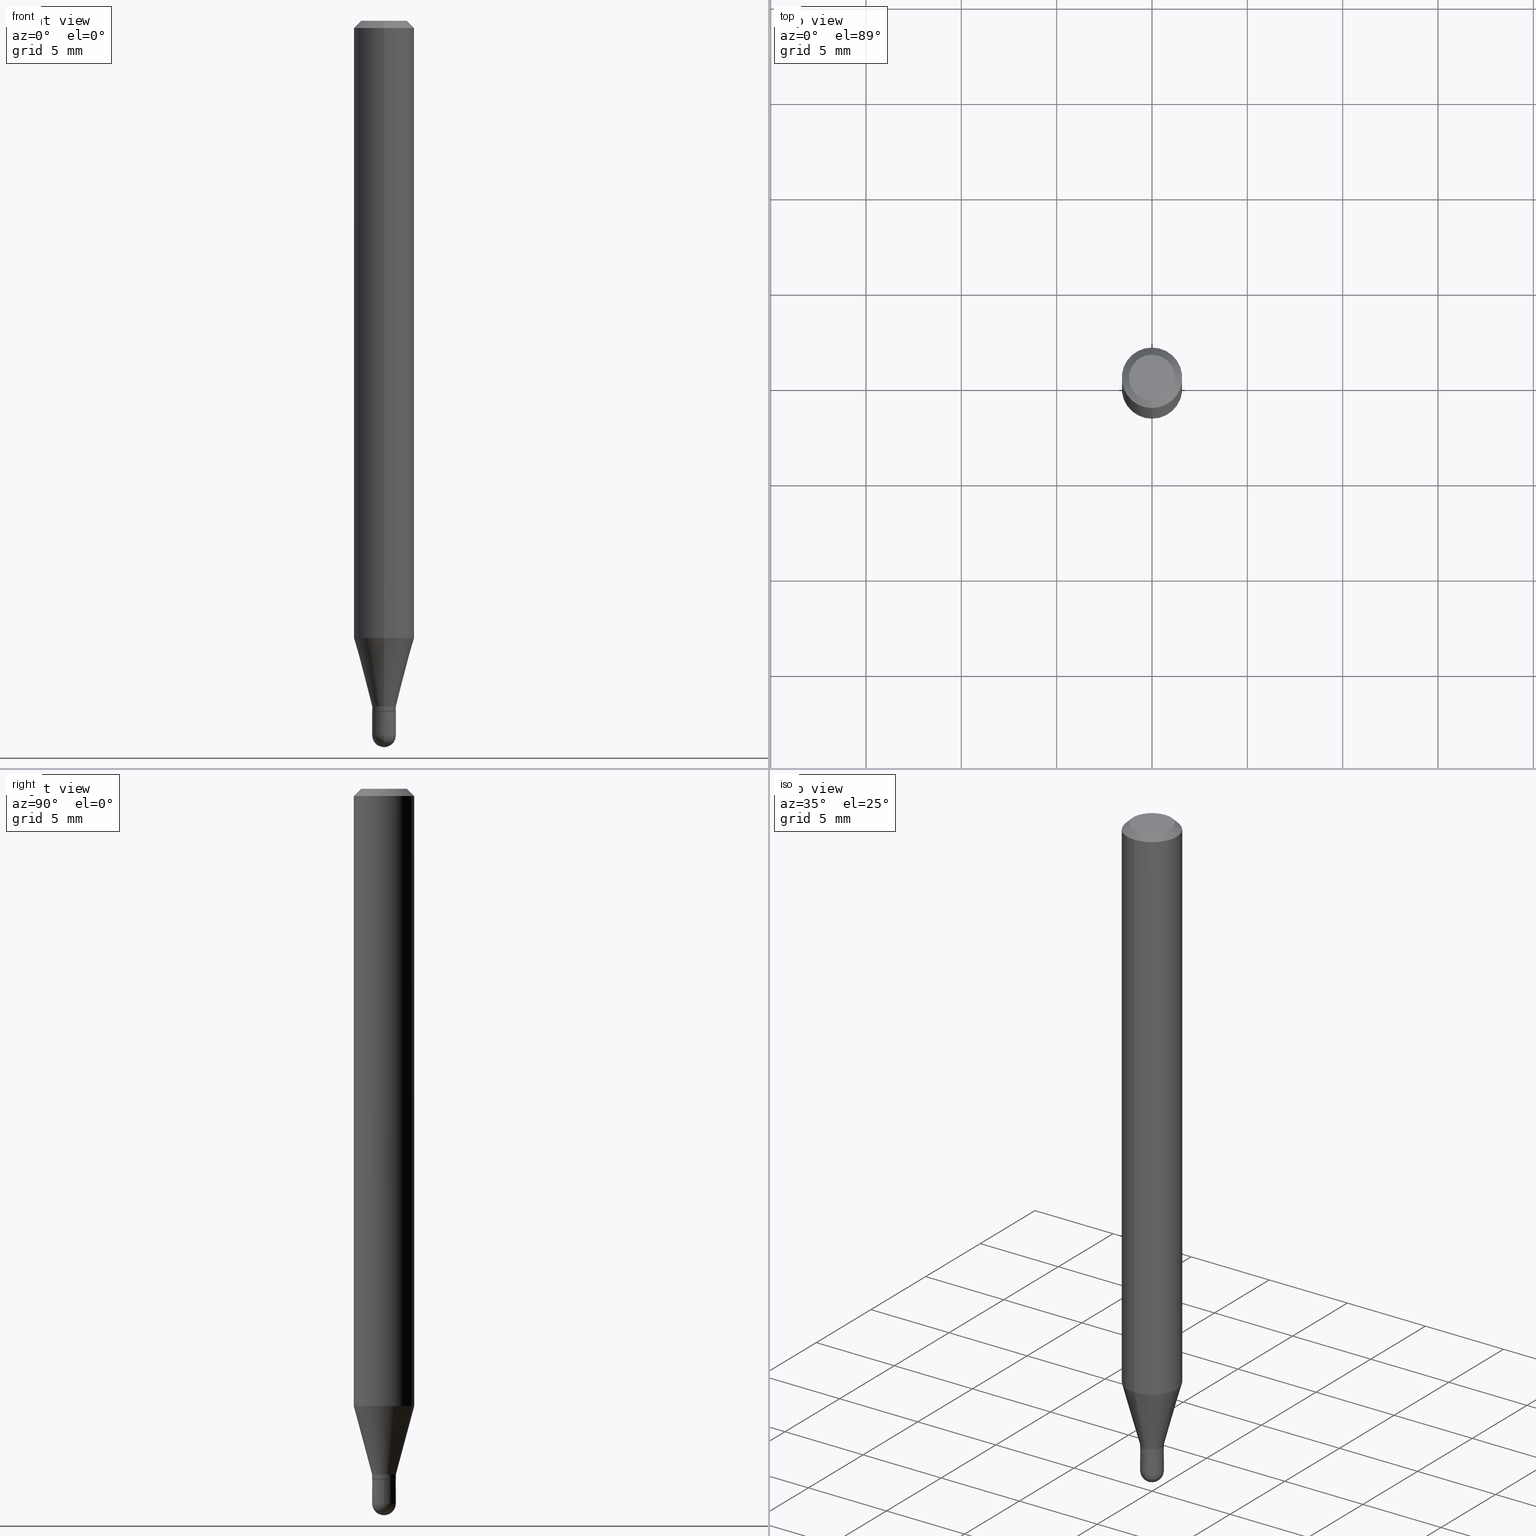
[diagram: canonical four-view strip — front | top / right | iso, engineering-drawing reading convention]
A machine part, canonical four-view strip (front | top / right | iso — engineering-drawing reading convention). The complete STEP part file that produces these views, byte-faithful:
ISO-10303-21;
HEADER;
FILE_DESCRIPTION (( 'STEP AP203' ),
    '1' );
FILE_NAME ('02512.STEP',
    '2024-03-07T20:10:44',
    ( '' ),
    ( '' ),
    'SwSTEP 2.0',
    'SolidWorks 2023',
    '' );
FILE_SCHEMA (( 'CONFIG_CONTROL_DESIGN' ));
ENDSEC;

DATA;
#1 = DIRECTION ( 'NONE',  ( -2.445462433583878327E-29, 3.491490464770853436E-15, 1.000000000000000000 ) ) ;
#2 = AXIS2_PLACEMENT_3D ( 'NONE', #282, #93, #480 ) ;
#3 = DIRECTION ( 'NONE',  ( -2.445468806185136877E-29, 3.491481338843145188E-15, 1.000000000000000000 ) ) ;
#4 = LOCAL_TIME ( 15, 10, 44.00000000000000000, #463 ) ;
#5 = DIRECTION ( 'NONE',  ( -2.445468806185136597E-29, 3.491481338843145583E-15, 1.000000000000000000 ) ) ;
#6 = EDGE_CURVE ( 'NONE', #367, #392, #416, .T. ) ;
#7 = DIRECTION ( 'NONE',  ( -2.445462433583878327E-29, 3.491490464770853436E-15, 1.000000000000000000 ) ) ;
#8 = DIRECTION ( 'NONE',  ( 1.000000000000000000, 0.000000000000000000, 0.000000000000000000 ) ) ;
#9 = FACE_OUTER_BOUND ( 'NONE', #10, .T. ) ;
#10 = EDGE_LOOP ( 'NONE', ( #122, #111 ) ) ;
#11 = DIRECTION ( 'NONE',  ( -6.982962677686265133E-15, -1.000000000000000000, 0.000000000000000000 ) ) ;
#12 = EDGE_CURVE ( 'NONE', #387, #55, #485, .T. ) ;
#13 = AXIS2_PLACEMENT_3D ( 'NONE', #448, #92, #317 ) ;
#14 = CIRCLE ( 'NONE', #88, 0.02449999999999992462 ) ;
#15 = LINE ( 'NONE', #368, #281 ) ;
#16 = CALENDAR_DATE ( 2024, 7, 3 ) ;
#17 = ORIENTED_EDGE ( 'NONE', *, *, #192, .T. ) ;
#18 = ORIENTED_EDGE ( 'NONE', *, *, #141, .F. ) ;
#19 = DIRECTION ( 'NONE',  ( -2.445468806185136877E-29, 3.491481338843145188E-15, 1.000000000000000000 ) ) ;
#20 = PERSON_AND_ORGANIZATION ( #395, #77 ) ;
#21 = ORIENTED_EDGE ( 'NONE', *, *, #436, .T. ) ;
#22 = ADVANCED_FACE ( 'NONE', ( #206 ), #279, .T. ) ;
#23 = ORIENTED_EDGE ( 'NONE', *, *, #440, .F. ) ;
#24 = AXIS2_PLACEMENT_3D ( 'NONE', #155, #504, #306 ) ;
#25 = COORDINATED_UNIVERSAL_TIME_OFFSET ( 5, 0, .BEHIND. ) ;
#26 = PERSON_AND_ORGANIZATION ( #395, #77 ) ;
#27 = DIRECTION ( 'NONE',  ( -6.982962677686265133E-15, -1.000000000000000000, 3.491490464770853436E-15 ) ) ;
#28 = ORIENTED_EDGE ( 'NONE', *, *, #90, .T. ) ;
#29 = PERSON_AND_ORGANIZATION_ROLE ( 'creator' ) ;
#30 = CIRCLE ( 'NONE', #171, 0.02450000000000000441 ) ;
#31 = PRODUCT_DEFINITION_FORMATION_WITH_SPECIFIED_SOURCE ( 'ANY', '', #290, .NOT_KNOWN. ) ;
#32 = ORIENTED_EDGE ( 'NONE', *, *, #128, .F. ) ;
#33 = ORIENTED_EDGE ( 'NONE', *, *, #471, .T. ) ;
#34 = EDGE_LOOP ( 'NONE', ( #156, #61, #497, #314, #32 ) ) ;
#35 = CC_DESIGN_PERSON_AND_ORGANIZATION_ASSIGNMENT ( #26, #29, ( #338 ) ) ;
#36 = ORIENTED_EDGE ( 'NONE', *, *, #303, .F. ) ;
#37 = VECTOR ( 'NONE', #388, 39.37007874015748143 ) ;
#38 = CC_DESIGN_APPROVAL ( #498, ( #31 ) ) ;
#39 = AXIS2_PLACEMENT_3D ( 'NONE', #468, #276, #434 ) ;
#40 = CARTESIAN_POINT ( 'NONE',  ( 3.668193650375898153E-31, -5.237235697156394761E-17, -0.01500000000000032904 ) ) ;
#41 = DIRECTION ( 'NONE',  ( -6.982962677686265922E-15, -1.000000000000000000, 0.000000000000000000 ) ) ;
#42 = CARTESIAN_POINT ( 'NONE',  ( -1.710825856032787042E-16, -0.02450000000000498307, -1.425500000000000211 ) ) ;
#43 = PRODUCT_RELATED_PRODUCT_CATEGORY ( 'detail', '', ( #290 ) ) ;
#44 = CARTESIAN_POINT ( 'NONE',  ( 3.090860900556762480E-16, 0.02449999999999498065, -1.416000000000000369 ) ) ;
#45 = AXIS2_PLACEMENT_3D ( 'NONE', #70, #430, #194 ) ;
#46 = CIRCLE ( 'NONE', #415, 0.04749999999999999362 ) ;
#47 = CARTESIAN_POINT ( 'NONE',  ( -1.710825856033129704E-16, -0.02449999999999992462, 8.554151638688565014E-17 ) ) ;
#48 = APPROVAL_ROLE ( '' ) ;
#49 = DIRECTION ( 'NONE',  ( -2.445462433583878327E-29, 3.491490464770853436E-15, 1.000000000000000000 ) ) ;
#50 =( NAMED_UNIT ( * ) SI_UNIT ( $, .STERADIAN. ) SOLID_ANGLE_UNIT ( ) );
#51 = EDGE_CURVE ( 'NONE', #346, #55, #76, .T. ) ;
#52 = DIRECTION ( 'NONE',  ( 1.000000000000000000, -6.982962677686272233E-15, 0.000000000000000000 ) ) ;
#53 = CONICAL_SURFACE ( 'NONE', #483, 0.06250000000000000000, 0.7853981633974483900 ) ;
#54 = LOCAL_TIME ( 15, 10, 44.00000000000000000, #147 ) ;
#55 = VERTEX_POINT ( 'NONE', #321 ) ;
#56 = VERTEX_POINT ( 'NONE', #439 ) ;
#57 = LINE ( 'NONE', #89, #428 ) ;
#58 = DIRECTION ( 'NONE',  ( -2.445462433583878327E-29, 3.491490464770853436E-15, 1.000000000000000000 ) ) ;
#59 = ORIENTED_EDGE ( 'NONE', *, *, #6, .T. ) ;
#60 = DIRECTION ( 'NONE',  ( -2.445462433583878327E-29, 3.491490464770853436E-15, 1.000000000000000000 ) ) ;
#61 = ORIENTED_EDGE ( 'NONE', *, *, #12, .T. ) ;
#62 = SECURITY_CLASSIFICATION_LEVEL ( 'unclassified' ) ;
#63 = DIRECTION ( 'NONE',  ( -4.851104656540964275E-15, -0.7071067811865500152, -0.7071067811865450192 ) ) ;
#64 = EDGE_CURVE ( 'NONE', #55, #311, #30, .T. ) ;
#65 = AXIS2_PLACEMENT_3D ( 'NONE', #437, #359, #41 ) ;
#66 = APPROVAL_DATE_TIME ( #417, #318 ) ;
#67 = ADVANCED_FACE ( 'NONE', ( #248 ), #354, .T. ) ;
#68 = CARTESIAN_POINT ( 'NONE',  ( 1.705302565824588813E-16, 0.02399999999999502184, -1.425999999999999934 ) ) ;
#69 = ORIENTED_EDGE ( 'NONE', *, *, #236, .T. ) ;
#70 = CARTESIAN_POINT ( 'NONE',  ( 3.115964384049603462E-29, -4.448794545386181558E-15, -1.274182069312383536 ) ) ;
#71 = EDGE_LOOP ( 'NONE', ( #350, #21, #227, #36 ) ) ;
#72 = COORDINATED_UNIVERSAL_TIME_OFFSET ( 5, 0, .BEHIND. ) ;
#73 = CARTESIAN_POINT ( 'NONE',  ( 3.486006699073818734E-29, -4.977119657530851924E-15, -1.425500000000000211 ) ) ;
#74 = ORIENTED_EDGE ( 'NONE', *, *, #191, .F. ) ;
#75 = SHAPE_DEFINITION_REPRESENTATION ( #189, #261 ) ;
#76 = CIRCLE ( 'NONE', #65, 0.02450000000000012584 ) ;
#77 = ORGANIZATION ( 'UNSPECIFIED', 'UNSPECIFIED', '' ) ;
#78 = ORIENTED_EDGE ( 'NONE', *, *, #236, .F. ) ;
#79 = CARTESIAN_POINT ( 'NONE',  ( -1.710825856032783344E-16, -0.02450000000000486858, -1.416000000000000369 ) ) ;
#80 = ORIENTED_EDGE ( 'NONE', *, *, #90, .F. ) ;
#81 = ORIENTED_EDGE ( 'NONE', *, *, #299, .T. ) ;
#82 = VERTEX_POINT ( 'NONE', #287 ) ;
#83 = ADVANCED_FACE ( 'NONE', ( #9 ), #352, .F. ) ;
#84 = CARTESIAN_POINT ( 'NONE',  ( -1.675911042644354999E-16, -0.02400000000000497569, -1.425999999999999934 ) ) ;
#85 = SPHERICAL_SURFACE ( 'NONE', #24, 0.02450000000000012584 ) ;
#86 = AXIS2_PLACEMENT_3D ( 'NONE', #400, #49, #11 ) ;
#87 = DIRECTION ( 'NONE',  ( 1.000000000000000000, -6.982962677686267499E-15, 4.876176775795936353E-29 ) ) ;
#88 = AXIS2_PLACEMENT_3D ( 'NONE', #73, #120, #410 ) ;
#89 = CARTESIAN_POINT ( 'NONE',  ( 0.02450000000000000441, -1.710825856033135867E-16, 1.194663310070004571E-30 ) ) ;
#90 = EDGE_CURVE ( 'NONE', #340, #382, #441, .T. ) ;
#91 = DIRECTION ( 'NONE',  ( -2.445462433583878327E-29, 3.491490464770853436E-15, 1.000000000000000000 ) ) ;
#92 = DIRECTION ( 'NONE',  ( -2.445462433583878327E-29, 3.491490464770853436E-15, 1.000000000000000000 ) ) ;
#93 = DIRECTION ( 'NONE',  ( -2.445462433583878327E-29, 3.491490464770853436E-15, 1.000000000000000000 ) ) ;
#94 = FACE_OUTER_BOUND ( 'NONE', #148, .T. ) ;
#95 = CARTESIAN_POINT ( 'NONE',  ( 3.668193650375898153E-31, -5.237235697156394761E-17, -0.01500000000000032904 ) ) ;
#96 = CIRCLE ( 'NONE', #495, 0.02400000000000000050 ) ;
#97 = DIRECTION ( 'NONE',  ( -2.445462433583877767E-29, 3.491490464770853831E-15, 1.000000000000000000 ) ) ;
#98 = DIRECTION ( 'NONE',  ( 0.000000000000000000, 0.000000000000000000, 1.000000000000000000 ) ) ;
#99 = EDGE_CURVE ( 'NONE', #56, #82, #341, .T. ) ;
#100 = ORIENTED_EDGE ( 'NONE', *, *, #242, .T. ) ;
#101 = ADVANCED_FACE ( 'NONE', ( #316 ), #53, .T. ) ;
#102 = DIRECTION ( 'NONE',  ( 1.000000000000000000, -7.105427357601001070E-15, 4.926315508542082329E-29 ) ) ;
#103 = CARTESIAN_POINT ( 'NONE',  ( 1.740829702612610371E-16, 0.02449999999999490780, -1.475500000000000256 ) ) ;
#104 = AXIS2_PLACEMENT_3D ( 'NONE', #204, #257, #295 ) ;
#105 = AXIS2_PLACEMENT_3D ( 'NONE', #331, #487, #294 ) ;
#106 = CIRCLE ( 'NONE', #389, 0.02450000000000000441 ) ;
#107 = CARTESIAN_POINT ( 'NONE',  ( 4.364351673553919652E-16, 0.06249999999999995143, -0.01500000000000054588 ) ) ;
#108 = ORIENTED_EDGE ( 'NONE', *, *, #312, .F. ) ;
#109 = DATE_AND_TIME ( #453, #334 ) ;
#110 = DIRECTION ( 'NONE',  ( 1.000000000000000000, -6.982962677686266711E-15, 4.883557194083112901E-29 ) ) ;
#111 = ORIENTED_EDGE ( 'NONE', *, *, #99, .F. ) ;
#112 = CALENDAR_DATE ( 2024, 7, 3 ) ;
#113 = EDGE_LOOP ( 'NONE', ( #464, #33 ) ) ;
#114 = AXIS2_PLACEMENT_3D ( 'NONE', #40, #462, #351 ) ;
#115 = CC_DESIGN_APPROVAL ( #318, ( #328 ) ) ;
#116 = CARTESIAN_POINT ( 'NONE',  ( 3.487229430290611061E-29, -4.978865402763238174E-15, -1.425999999999999934 ) ) ;
#117 = ORIENTED_EDGE ( 'NONE', *, *, #332, .T. ) ;
#118 = FACE_OUTER_BOUND ( 'NONE', #466, .T. ) ;
#119 = APPROVAL_STATUS ( 'not_yet_approved' ) ;
#120 = DIRECTION ( 'NONE',  ( -2.445462433583878327E-29, 3.491490464770853436E-15, 1.000000000000000000 ) ) ;
#121 = ORIENTED_EDGE ( 'NONE', *, *, #335, .F. ) ;
#122 = ORIENTED_EDGE ( 'NONE', *, *, #150, .F. ) ;
#123 = CALENDAR_DATE ( 2024, 7, 3 ) ;
#124 = EDGE_LOOP ( 'NONE', ( #447, #28, #74, #379 ) ) ;
#125 = FACE_OUTER_BOUND ( 'NONE', #113, .T. ) ;
#126 = CIRCLE ( 'NONE', #104, 0.02450000000000000094 ) ;
#127 = EDGE_LOOP ( 'NONE', ( #130, #307, #509, #360 ) ) ;
#128 = EDGE_CURVE ( 'NONE', #433, #374, #230, .T. ) ;
#129 = CARTESIAN_POINT ( 'NONE',  ( 0.02450000000000000441, -5.236349137930007031E-15, -1.475500000000000256 ) ) ;
#130 = ORIENTED_EDGE ( 'NONE', *, *, #471, .F. ) ;
#131 = DIRECTION ( 'NONE',  ( 1.839019923739602682E-15, 0.2588190451025252914, 0.9659258262890670910 ) ) ;
#132 = CYLINDRICAL_SURFACE ( 'NONE', #201, 0.02450000000000000441 ) ;
#133 = EDGE_LOOP ( 'NONE', ( #455, #145, #260, #18 ) ) ;
#134 = AXIS2_PLACEMENT_3D ( 'NONE', #207, #355, #52 ) ;
#135 = CARTESIAN_POINT ( 'NONE',  ( 1.740829702612239852E-16, 0.02449999999999992462, -8.554151638688565014E-17 ) ) ;
#136 = CARTESIAN_POINT ( 'NONE',  ( 3.668193650375898153E-31, -5.237235697156394761E-17, -0.01500000000000032904 ) ) ;
#137 = DIMENSIONAL_EXPONENTS ( 1.000000000000000000, 0.000000000000000000, 0.000000000000000000, 0.000000000000000000, 0.000000000000000000, 0.000000000000000000, 0.000000000000000000 ) ;
#138 = CARTESIAN_POINT ( 'NONE',  ( 1.740829702612582514E-16, 0.02449999999999486616, -1.425500000000000211 ) ) ;
#139 = DIRECTION ( 'NONE',  ( 1.000000000000000000, -6.982962677686273810E-15, 0.000000000000000000 ) ) ;
#140 = DIRECTION ( 'NONE',  ( -6.982962677686265922E-15, -1.000000000000000000, 3.491490464770853831E-15 ) ) ;
#141 = EDGE_CURVE ( 'NONE', #340, #167, #414, .T. ) ;
#142 = AXIS2_PLACEMENT_3D ( 'NONE', #209, #1, #211 ) ;
#143 = AXIS2_PLACEMENT_3D ( 'NONE', #185, #378, #27 ) ;
#144 =( CONVERSION_BASED_UNIT ( 'INCH', #174 ) LENGTH_UNIT ( ) NAMED_UNIT ( #137 ) );
#145 = ORIENTED_EDGE ( 'NONE', *, *, #99, .T. ) ;
#146 = DIRECTION ( 'NONE',  ( -1.000000000000000000, 6.982962677686265922E-15, -4.876176775795935793E-29 ) ) ;
#147 = COORDINATED_UNIVERSAL_TIME_OFFSET ( 5, 0, .BEHIND. ) ;
#148 = EDGE_LOOP ( 'NONE', ( #17, #486 ) ) ;
#149 = CARTESIAN_POINT ( 'NONE',  ( 3.606194066117680480E-29, -5.154681100120972780E-15, -1.475500000000000256 ) ) ;
#150 = EDGE_CURVE ( 'NONE', #82, #56, #96, .T. ) ;
#151 = AXIS2_PLACEMENT_3D ( 'NONE', #470, #473, #139 ) ;
#152 = AXIS2_PLACEMENT_3D ( 'NONE', #116, #264, #225 ) ;
#153 = DIRECTION ( 'NONE',  ( 5.024295867788190974E-15, 0.7071067811865681119, 0.7071067811865270336 ) ) ;
#154 = EDGE_LOOP ( 'NONE', ( #461, #452, #81, #296 ) ) ;
#155 = CARTESIAN_POINT ( 'NONE',  ( 3.606194066117680480E-29, -5.154681100120972780E-15, -1.475500000000000256 ) ) ;
#156 = ORIENTED_EDGE ( 'NONE', *, *, #401, .F. ) ;
#157 = PERSON_AND_ORGANIZATION_ROLE ( 'design_supplier' ) ;
#158 = ORIENTED_EDGE ( 'NONE', *, *, #182, .T. ) ;
#159 = EDGE_CURVE ( 'NONE', #420, #265, #293, .T. ) ;
#160 = DIRECTION ( 'NONE',  ( -2.445462433583878327E-29, 3.491490464770853436E-15, 1.000000000000000000 ) ) ;
#161 = DIRECTION ( 'NONE',  ( -1.807323732225332900E-15, -0.2588190451025185190, 0.9659258262890689783 ) ) ;
#162 = EDGE_CURVE ( 'NONE', #167, #232, #362, .T. ) ;
#163 = CIRCLE ( 'NONE', #86, 0.02449999999999992462 ) ;
#164 = AXIS2_PLACEMENT_3D ( 'NONE', #258, #60, #218 ) ;
#165 = CLOSED_SHELL ( 'NONE', ( #353, #176, #399, #228, #245, #427, #67, #101, #277, #83, #446, #454 ) ) ;
#166 = CARTESIAN_POINT ( 'NONE',  ( 4.440892098500625669E-16, 0.06250000000000000000, -2.182181540481783151E-16 ) ) ;
#167 = VERTEX_POINT ( 'NONE', #42 ) ;
#168 = DIRECTION ( 'NONE',  ( -6.982962677686265133E-15, -1.000000000000000000, 0.000000000000000000 ) ) ;
#169 = DIRECTION ( 'NONE',  ( -2.445462433583878047E-29, 3.491490464770853831E-15, 1.000000000000000000 ) ) ;
#170 = CARTESIAN_POINT ( 'NONE',  ( 3.665060473164972086E-29, -5.241722585251585722E-15, -1.500000000000000444 ) ) ;
#171 = AXIS2_PLACEMENT_3D ( 'NONE', #172, #237, #390 ) ;
#172 = CARTESIAN_POINT ( 'NONE',  ( 3.608289223526169394E-29, -5.151680715463062135E-15, -1.475500000000000256 ) ) ;
#173 = CARTESIAN_POINT ( 'NONE',  ( -0.02450000000000000441, -4.891183582065470642E-15, -1.475500000000000256 ) ) ;
#174 = LENGTH_MEASURE_WITH_UNIT ( LENGTH_MEASURE( 0.02539999999999999897 ), #283 );
#175 = PERSON_AND_ORGANIZATION ( #395, #77 ) ;
#176 = ADVANCED_FACE ( 'NONE', ( #323 ), #200, .T. ) ;
#177 = CARTESIAN_POINT ( 'NONE',  ( 3.608289223526169394E-29, -5.151680715463062135E-15, -1.475500000000000256 ) ) ;
#178 = EDGE_LOOP ( 'NONE', ( #80, #426, #493, #121 ) ) ;
#179 = DIRECTION ( 'NONE',  ( -2.445462433583878047E-29, 3.491490464770853831E-15, 1.000000000000000000 ) ) ;
#180 = AXIS2_PLACEMENT_3D ( 'NONE', #278, #234, #168 ) ;
#181 = EDGE_LOOP ( 'NONE', ( #23, #347, #373, #199 ) ) ;
#182 = EDGE_CURVE ( 'NONE', #311, #422, #106, .T. ) ;
#183 = CARTESIAN_POINT ( 'NONE',  ( -4.364351673553912750E-16, -0.06250000000000005551, -0.01500000000000011047 ) ) ;
#184 = APPROVAL_ROLE ( '' ) ;
#185 = CARTESIAN_POINT ( 'NONE',  ( 0.000000000000000000, 0.000000000000000000, 0.000000000000000000 ) ) ;
#186 = AXIS2_PLACEMENT_3D ( 'NONE', #244, #445, #87 ) ;
#187 = APPROVAL_PERSON_ORGANIZATION ( #190, #498, #224 ) ;
#188 = ORIENTED_EDGE ( 'NONE', *, *, #213, .F. ) ;
#189 = PRODUCT_DEFINITION_SHAPE ( 'NONE', 'NONE',  #338 ) ;
#190 = PERSON_AND_ORGANIZATION ( #395, #77 ) ;
#191 = EDGE_CURVE ( 'NONE', #232, #382, #163, .T. ) ;
#192 = EDGE_CURVE ( 'NONE', #374, #433, #126, .T. ) ;
#193 = DIRECTION ( 'NONE',  ( -2.445462433583878327E-29, 3.491490464770853436E-15, 1.000000000000000000 ) ) ;
#194 = DIRECTION ( 'NONE',  ( -6.982962677686265922E-15, -1.000000000000000000, 4.370956789862821150E-15 ) ) ;
#195 = CONICAL_SURFACE ( 'NONE', #474, 0.06250000000000000000, 0.7853981633974483900 ) ;
#196 = CARTESIAN_POINT ( 'NONE',  ( 8.024699732624142667E-45, -1.145720425483910570E-30, -3.281465142305935918E-16 ) ) ;
#197 = APPROVAL ( #398, 'UNSPECIFIED' ) ;
#198 = DIRECTION ( 'NONE',  ( -6.982962677686265133E-15, -1.000000000000000000, 0.000000000000000000 ) ) ;
#199 = ORIENTED_EDGE ( 'NONE', *, *, #280, .T. ) ;
#200 = CONICAL_SURFACE ( 'NONE', #467, 0.02400000000000000050, 0.7853981633974739252 ) ;
#201 = AXIS2_PLACEMENT_3D ( 'NONE', #366, #5, #329 ) ;
#202 = ORIENTED_EDGE ( 'NONE', *, *, #386, .T. ) ;
#203 = AXIS2_PLACEMENT_3D ( 'NONE', #503, #160, #505 ) ;
#204 = CARTESIAN_POINT ( 'NONE',  ( 3.487238517620005029E-29, -4.978852389190326182E-15, -1.425999999999999934 ) ) ;
#205 = DIRECTION ( 'NONE',  ( -6.982962677686265922E-15, -1.000000000000000000, 3.491490464770853042E-15 ) ) ;
#206 = FACE_OUTER_BOUND ( 'NONE', #269, .T. ) ;
#207 = CARTESIAN_POINT ( 'NONE',  ( 3.608289223526169394E-29, -5.151680715463062135E-15, -1.475500000000000256 ) ) ;
#208 = CIRCLE ( 'NONE', #134, 0.02450000000000000441 ) ;
#209 = CARTESIAN_POINT ( 'NONE',  ( 3.487229430290611061E-29, -4.978865402763238174E-15, -1.425999999999999934 ) ) ;
#210 = DIRECTION ( 'NONE',  ( -6.982962677686265922E-15, -1.000000000000000000, 3.483106191921935554E-15 ) ) ;
#211 = DIRECTION ( 'NONE',  ( -6.982962677686265922E-15, -1.000000000000000000, 0.000000000000000000 ) ) ;
#212 = ORIENTED_EDGE ( 'NONE', *, *, #299, .F. ) ;
#213 = EDGE_CURVE ( 'NONE', #346, #422, #356, .T. ) ;
#214 = AXIS2_PLACEMENT_3D ( 'NONE', #512, #97, #140 ) ;
#215 = LINE ( 'NONE', #107, #457 ) ;
#216 = CARTESIAN_POINT ( 'NONE',  ( 3.606194066117680480E-29, -5.154681100120972780E-15, -1.475500000000000256 ) ) ;
#217 = ORIENTED_EDGE ( 'NONE', *, *, #312, .T. ) ;
#218 = DIRECTION ( 'NONE',  ( -6.982962677686266711E-15, -1.000000000000000000, 3.491490464770853831E-15 ) ) ;
#219 = VERTEX_POINT ( 'NONE', #377 ) ;
#220 = DIRECTION ( 'NONE',  ( -6.982962677686266711E-15, -1.000000000000000000, 0.000000000000000000 ) ) ;
#221 = VECTOR ( 'NONE', #161, 39.37007874015748854 ) ;
#222 = LOCAL_TIME ( 15, 10, 44.00000000000000000, #494 ) ;
#223 = CC_DESIGN_DATE_AND_TIME_ASSIGNMENT ( #297, #413, ( #338 ) ) ;
#224 = APPROVAL_ROLE ( '' ) ;
#225 = DIRECTION ( 'NONE',  ( -6.982962677686265922E-15, -1.000000000000000000, 0.000000000000000000 ) ) ;
#226 = LINE ( 'NONE', #502, #37 ) ;
#227 = ORIENTED_EDGE ( 'NONE', *, *, #510, .F. ) ;
#228 = ADVANCED_FACE ( 'NONE', ( #408 ), #450, .T. ) ;
#229 = CARTESIAN_POINT ( 'NONE',  ( -3.773273898774340269E-16, -0.04749999999999999362, -1.623007171539780595E-16 ) ) ;
#230 = CIRCLE ( 'NONE', #151, 0.02450000000000000094 ) ;
#231 = ORIENTED_EDGE ( 'NONE', *, *, #51, .T. ) ;
#232 = VERTEX_POINT ( 'NONE', #336 ) ;
#233 = MANIFOLD_SOLID_BREP ( 'Body-Move/Copy2[2]', #165 ) ;
#234 = DIRECTION ( 'NONE',  ( -2.445462433583878327E-29, 3.491490464770853436E-15, 1.000000000000000000 ) ) ;
#235 = AXIS2_PLACEMENT_3D ( 'NONE', #136, #91, #210 ) ;
#236 = EDGE_CURVE ( 'NONE', #392, #367, #262, .T. ) ;
#237 = DIRECTION ( 'NONE',  ( -2.445468806185136597E-29, 3.491481338843145583E-15, 1.000000000000000000 ) ) ;
#238 = DIRECTION ( 'NONE',  ( 2.438088387897960049E-29, -3.491481338843145188E-15, -1.000000000000000000 ) ) ;
#239 = APPLICATION_PROTOCOL_DEFINITION ( 'international standard', 'config_control_design', 1994, #284 ) ;
#240 = DESIGN_CONTEXT ( 'detailed design', #309, 'design' ) ;
#241 = DIRECTION ( 'NONE',  ( 2.445462433583878327E-29, -3.491490464770853436E-15, -1.000000000000000000 ) ) ;
#242 = EDGE_CURVE ( 'NONE', #392, #420, #226, .T. ) ;
#243 = AXIS2_PLACEMENT_3D ( 'NONE', #291, #58, #259 ) ;
#244 = CARTESIAN_POINT ( 'NONE',  ( 0.000000000000000000, 0.000000000000000000, 0.000000000000000000 ) ) ;
#245 = ADVANCED_FACE ( 'NONE', ( #345 ), #310, .T. ) ;
#246 = APPROVAL_PERSON_ORGANIZATION ( #363, #318, #184 ) ;
#247 = PERSON_AND_ORGANIZATION ( #395, #77 ) ;
#248 = FACE_OUTER_BOUND ( 'NONE', #402, .T. ) ;
#249 =( NAMED_UNIT ( * ) PLANE_ANGLE_UNIT ( ) SI_UNIT ( $, .RADIAN. ) );
#250 = CC_DESIGN_DATE_AND_TIME_ASSIGNMENT ( #270, #375, ( #328 ) ) ;
#251 = ORIENTED_EDGE ( 'NONE', *, *, #401, .T. ) ;
#252 = EDGE_LOOP ( 'NONE', ( #69, #217, #501, #432 ) ) ;
#253 = MANIFOLD_SOLID_BREP ( 'Body-Move/Copy2[1]', #376 ) ;
#254 = AXIS2_PLACEMENT_3D ( 'NONE', #391, #7, #205 ) ;
#255 = FACE_OUTER_BOUND ( 'NONE', #154, .T. ) ;
#256 = VECTOR ( 'NONE', #63, 39.37007874015748143 ) ;
#257 = DIRECTION ( 'NONE',  ( -2.445468806185136597E-29, 3.491481338843145583E-15, 1.000000000000000000 ) ) ;
#258 = CARTESIAN_POINT ( 'NONE',  ( 8.024699732624142667E-45, -1.145720425483910570E-30, -3.281465142305935918E-16 ) ) ;
#259 = DIRECTION ( 'NONE',  ( -6.982962677686265922E-15, -1.000000000000000000, 3.491490464770853042E-15 ) ) ;
#260 = ORIENTED_EDGE ( 'NONE', *, *, #303, .T. ) ;
#261 = ADVANCED_BREP_SHAPE_REPRESENTATION ( '02512', ( #253, #233, #490 ), #263 ) ;
#262 = CIRCLE ( 'NONE', #45, 0.06250000000000000000 ) ;
#263 =( GEOMETRIC_REPRESENTATION_CONTEXT ( 3 ) GLOBAL_UNCERTAINTY_ASSIGNED_CONTEXT ( ( #300 ) ) GLOBAL_UNIT_ASSIGNED_CONTEXT ( ( #144, #249, #50 ) ) REPRESENTATION_CONTEXT ( 'NONE', 'WORKASPACE' ) );
#264 = DIRECTION ( 'NONE',  ( -2.445462433583878327E-29, 3.491490464770853436E-15, 1.000000000000000000 ) ) ;
#265 = VERTEX_POINT ( 'NONE', #499 ) ;
#266 = PLANE ( 'NONE',  #383 ) ;
#267 = ADVANCED_FACE ( 'NONE', ( #118 ), #85, .T. ) ;
#268 = FACE_OUTER_BOUND ( 'NONE', #34, .T. ) ;
#269 = EDGE_LOOP ( 'NONE', ( #202, #251, #305, #385, #158 ) ) ;
#270 = DATE_AND_TIME ( #123, #4 ) ;
#271 = ORIENTED_EDGE ( 'NONE', *, *, #386, .F. ) ;
#272 = AXIS2_PLACEMENT_3D ( 'NONE', #216, #102, #412 ) ;
#273 = APPROVAL_PERSON_ORGANIZATION ( #247, #197, #48 ) ;
#274 = ORIENTED_EDGE ( 'NONE', *, *, #191, .T. ) ;
#275 = LINE ( 'NONE', #469, #349 ) ;
#276 = DIRECTION ( 'NONE',  ( -2.445468806185136597E-29, 3.491481338843145583E-15, 1.000000000000000000 ) ) ;
#277 = ADVANCED_FACE ( 'NONE', ( #125 ), #266, .F. ) ;
#278 = CARTESIAN_POINT ( 'NONE',  ( 3.462774805954772922E-29, -4.943950498115529734E-15, -1.416000000000000369 ) ) ;
#279 = CYLINDRICAL_SURFACE ( 'NONE', #186, 0.02450000000000000441 ) ;
#280 = EDGE_CURVE ( 'NONE', #265, #420, #489, .T. ) ;
#281 = VECTOR ( 'NONE', #19, 39.37007874015748143 ) ;
#282 = CARTESIAN_POINT ( 'NONE',  ( 3.486006699073818734E-29, -4.977119657530851924E-15, -1.425500000000000211 ) ) ;
#283 =( LENGTH_UNIT ( ) NAMED_UNIT ( * ) SI_UNIT ( $, .METRE. ) );
#284 = APPLICATION_CONTEXT ( 'configuration controlled 3d designs of mechanical parts and assemblies' ) ;
#285 = CARTESIAN_POINT ( 'NONE',  ( 3.487229430290611061E-29, -4.978865402763238174E-15, -1.425999999999999934 ) ) ;
#286 = FACE_OUTER_BOUND ( 'NONE', #124, .T. ) ;
#287 = CARTESIAN_POINT ( 'NONE',  ( -1.675911042644354999E-16, -0.02400000000000497569, -1.425999999999999934 ) ) ;
#288 = VECTOR ( 'NONE', #313, 39.37007874015748143 ) ;
#289 = DIRECTION ( 'NONE',  ( 1.000000000000000000, -6.982962677686272233E-15, 0.000000000000000000 ) ) ;
#290 = PRODUCT ( '02512', '02512', '', ( #478 ) ) ;
#291 = CARTESIAN_POINT ( 'NONE',  ( 0.000000000000000000, 0.000000000000000000, 0.000000000000000000 ) ) ;
#292 = VERTEX_POINT ( 'NONE', #229 ) ;
#293 = CIRCLE ( 'NONE', #235, 0.06250000000000000000 ) ;
#294 = DIRECTION ( 'NONE',  ( -6.982962677686265133E-15, -1.000000000000000000, 0.000000000000000000 ) ) ;
#295 = DIRECTION ( 'NONE',  ( 1.000000000000000000, -6.982962677686273810E-15, 0.000000000000000000 ) ) ;
#296 = ORIENTED_EDGE ( 'NONE', *, *, #6, .F. ) ;
#297 = DATE_AND_TIME ( #460, #222 ) ;
#298 = ORIENTED_EDGE ( 'NONE', *, *, #182, .F. ) ;
#299 = EDGE_CURVE ( 'NONE', #232, #392, #308, .T. ) ;
#300 = UNCERTAINTY_MEASURE_WITH_UNIT (LENGTH_MEASURE( 1.000000000000000082E-05 ), #144, 'distance_accuracy_value', 'NONE');
#301 = ORIENTED_EDGE ( 'NONE', *, *, #51, .F. ) ;
#302 = AXIS2_PLACEMENT_3D ( 'NONE', #315, #238, #146 ) ;
#303 = EDGE_CURVE ( 'NONE', #82, #167, #421, .T. ) ;
#304 = FACE_OUTER_BOUND ( 'NONE', #423, .T. ) ;
#305 = ORIENTED_EDGE ( 'NONE', *, *, #192, .F. ) ;
#306 = DIRECTION ( 'NONE',  ( -6.982962677686266711E-15, -1.000000000000000000, 0.000000000000000000 ) ) ;
#307 = ORIENTED_EDGE ( 'NONE', *, *, #440, .T. ) ;
#308 = LINE ( 'NONE', #79, #221 ) ;
#309 = APPLICATION_CONTEXT ( 'configuration controlled 3d designs of mechanical parts and assemblies' ) ;
#310 = CONICAL_SURFACE ( 'NONE', #443, 0.02449999999999992462, 0.2617993877991506291 ) ;
#311 = VERTEX_POINT ( 'NONE', #129 ) ;
#312 = EDGE_CURVE ( 'NONE', #367, #265, #508, .T. ) ;
#313 = DIRECTION ( 'NONE',  ( -2.445462433583878047E-29, 3.491490464770853831E-15, 1.000000000000000000 ) ) ;
#314 = ORIENTED_EDGE ( 'NONE', *, *, #369, .T. ) ;
#315 = CARTESIAN_POINT ( 'NONE',  ( 1.710825856033483952E-16, 0.02449999999999502229, -1.425999999999999934 ) ) ;
#316 = FACE_OUTER_BOUND ( 'NONE', #181, .T. ) ;
#317 = DIRECTION ( 'NONE',  ( -6.982962677686265133E-15, -1.000000000000000000, 3.491490464770853436E-15 ) ) ;
#318 = APPROVAL ( #425, 'UNSPECIFIED' ) ;
#319 = VECTOR ( 'NONE', #169, 39.37007874015748143 ) ;
#320 = CONICAL_SURFACE ( 'NONE', #152, 0.02400000000000000050, 0.7853981633974739252 ) ;
#321 = CARTESIAN_POINT ( 'NONE',  ( -1.710825856032779154E-16, -0.02450000000000522246, -1.475500000000000256 ) ) ;
#322 = CARTESIAN_POINT ( 'NONE',  ( -4.364351673553605587E-16, -0.06250000000000446865, -1.274182069312383314 ) ) ;
#323 = FACE_OUTER_BOUND ( 'NONE', #71, .T. ) ;
#324 = PERSON_AND_ORGANIZATION_ROLE ( 'design_owner' ) ;
#325 = CARTESIAN_POINT ( 'NONE',  ( 3.487229430290611061E-29, -4.978865402763238174E-15, -1.425999999999999934 ) ) ;
#326 = CARTESIAN_POINT ( 'NONE',  ( 0.000000000000000000, 0.000000000000000000, 0.000000000000000000 ) ) ;
#327 = CIRCLE ( 'NONE', #180, 0.02449999999999992462 ) ;
#328 = SECURITY_CLASSIFICATION ( '', '', #62 ) ;
#329 = DIRECTION ( 'NONE',  ( 1.000000000000000000, -6.982962677686267499E-15, 4.876176775795936353E-29 ) ) ;
#330 = CARTESIAN_POINT ( 'NONE',  ( 4.440892098500935790E-16, 0.06249999999999553135, -1.274182069312383758 ) ) ;
#331 = CARTESIAN_POINT ( 'NONE',  ( 3.462774805954772922E-29, -4.943950498115529734E-15, -1.416000000000000369 ) ) ;
#332 = EDGE_CURVE ( 'NONE', #382, #367, #275, .T. ) ;
#333 = CYLINDRICAL_SURFACE ( 'NONE', #143, 0.02449999999999992462 ) ;
#334 = LOCAL_TIME ( 15, 10, 44.00000000000000000, #72 ) ;
#335 = EDGE_CURVE ( 'NONE', #382, #232, #327, .T. ) ;
#336 = CARTESIAN_POINT ( 'NONE',  ( -1.710825856032783344E-16, -0.02450000000000486858, -1.416000000000000369 ) ) ;
#337 = PERSON_AND_ORGANIZATION_ROLE ( 'classification_officer' ) ;
#338 = PRODUCT_DEFINITION ( 'UNKNOWN', '', #31, #240 ) ;
#339 = DIRECTION ( 'NONE',  ( -6.982962677686266711E-15, -1.000000000000000000, 3.491490464770853831E-15 ) ) ;
#340 = VERTEX_POINT ( 'NONE', #138 ) ;
#341 = CIRCLE ( 'NONE', #142, 0.02400000000000000050 ) ;
#342 = LOCAL_TIME ( 15, 10, 44.00000000000000000, #25 ) ;
#343 = DIRECTION ( 'NONE',  ( -2.445462433583878327E-29, 3.491490464770853436E-15, 1.000000000000000000 ) ) ;
#344 = ORIENTED_EDGE ( 'NONE', *, *, #280, .F. ) ;
#345 = FACE_OUTER_BOUND ( 'NONE', #403, .T. ) ;
#346 = VERTEX_POINT ( 'NONE', #170 ) ;
#347 = ORIENTED_EDGE ( 'NONE', *, *, #431, .F. ) ;
#348 = CARTESIAN_POINT ( 'NONE',  ( 3.316907271900976096E-16, 0.04749999999999999362, -3.299190541919122542E-16 ) ) ;
#349 = VECTOR ( 'NONE', #131, 39.37007874015748143 ) ;
#350 = ORIENTED_EDGE ( 'NONE', *, *, #150, .T. ) ;
#351 = DIRECTION ( 'NONE',  ( -6.982962677686265922E-15, -1.000000000000000000, 3.483106191921935554E-15 ) ) ;
#352 = PLANE ( 'NONE',  #214 ) ;
#353 = ADVANCED_FACE ( 'NONE', ( #286 ), #449, .T. ) ;
#354 = CYLINDRICAL_SURFACE ( 'NONE', #254, 0.06250000000000000000 ) ;
#355 = DIRECTION ( 'NONE',  ( -2.445468806185136597E-29, 3.491481338843145583E-15, 1.000000000000000000 ) ) ;
#356 = CIRCLE ( 'NONE', #272, 0.02450000000000012584 ) ;
#357 = AXIS2_PLACEMENT_3D ( 'NONE', #149, #110, #220 ) ;
#358 = DIRECTION ( 'NONE',  ( -6.982962677686265922E-15, -1.000000000000000000, 0.000000000000000000 ) ) ;
#359 = DIRECTION ( 'NONE',  ( -1.000000000000000000, 6.982962677686265922E-15, -4.883557194083112340E-29 ) ) ;
#360 = ORIENTED_EDGE ( 'NONE', *, *, #361, .F. ) ;
#361 = EDGE_CURVE ( 'NONE', #219, #265, #215, .T. ) ;
#362 = LINE ( 'NONE', #47, #404 ) ;
#363 = PERSON_AND_ORGANIZATION ( #395, #77 ) ;
#364 = ADVANCED_FACE ( 'NONE', ( #94 ), #475, .F. ) ;
#365 = DIRECTION ( 'NONE',  ( 6.982962677686265922E-15, 1.000000000000000000, -3.483106191921935554E-15 ) ) ;
#366 = CARTESIAN_POINT ( 'NONE',  ( 0.000000000000000000, 0.000000000000000000, 0.000000000000000000 ) ) ;
#367 = VERTEX_POINT ( 'NONE', #330 ) ;
#368 = CARTESIAN_POINT ( 'NONE',  ( -0.02450000000000000441, 1.740829702612245769E-16, -1.205139097112452116E-30 ) ) ;
#369 = EDGE_CURVE ( 'NONE', #311, #374, #57, .T. ) ;
#370 = ORIENTED_EDGE ( 'NONE', *, *, #64, .F. ) ;
#371 = CARTESIAN_POINT ( 'NONE',  ( -0.02450000000000000094, -4.891183582065470642E-15, -1.425999999999999934 ) ) ;
#372 = APPROVAL_DATE_TIME ( #411, #197 ) ;
#373 = ORIENTED_EDGE ( 'NONE', *, *, #361, .T. ) ;
#374 = VERTEX_POINT ( 'NONE', #393 ) ;
#375 = DATE_TIME_ROLE ( 'classification_date' ) ;
#376 = CLOSED_SHELL ( 'NONE', ( #22, #479, #364, #267, #511 ) ) ;
#377 = CARTESIAN_POINT ( 'NONE',  ( 3.840629472727447874E-16, 0.04749999999999999362, -4.939923113072091241E-16 ) ) ;
#378 = DIRECTION ( 'NONE',  ( -2.445462433583878327E-29, 3.491490464770853436E-15, 1.000000000000000000 ) ) ;
#379 = ORIENTED_EDGE ( 'NONE', *, *, #162, .F. ) ;
#380 = PERSON_AND_ORGANIZATION ( #395, #77 ) ;
#381 = FACE_OUTER_BOUND ( 'NONE', #133, .T. ) ;
#382 = VERTEX_POINT ( 'NONE', #44 ) ;
#383 = AXIS2_PLACEMENT_3D ( 'NONE', #348, #424, #459 ) ;
#384 = LINE ( 'NONE', #458, #256 ) ;
#385 = ORIENTED_EDGE ( 'NONE', *, *, #369, .F. ) ;
#386 = EDGE_CURVE ( 'NONE', #422, #387, #208, .T. ) ;
#387 = VERTEX_POINT ( 'NONE', #173 ) ;
#388 = DIRECTION ( 'NONE',  ( -2.445462433583878047E-29, 3.491490464770853831E-15, 1.000000000000000000 ) ) ;
#389 = AXIS2_PLACEMENT_3D ( 'NONE', #177, #482, #289 ) ;
#390 = DIRECTION ( 'NONE',  ( 1.000000000000000000, -6.982962677686272233E-15, 0.000000000000000000 ) ) ;
#391 = CARTESIAN_POINT ( 'NONE',  ( 0.000000000000000000, 0.000000000000000000, 0.000000000000000000 ) ) ;
#392 = VERTEX_POINT ( 'NONE', #322 ) ;
#393 = CARTESIAN_POINT ( 'NONE',  ( 0.02450000000000000094, -5.149934974793639843E-15, -1.425999999999999934 ) ) ;
#394 = DIRECTION ( 'NONE',  ( -2.445462433583878327E-29, 3.491490464770853436E-15, 1.000000000000000000 ) ) ;
#395 = PERSON ( 'UNSPECIFIED', 'UNSPECIFIED', 'UNSPECIFIED', ('UNSPECIFIED'), ('UNSPECIFIED'), ('UNSPECIFIED') ) ;
#396 = CC_DESIGN_SECURITY_CLASSIFICATION ( #328, ( #31 ) ) ;
#397 = DIRECTION ( 'NONE',  ( -6.982962677686265922E-15, -1.000000000000000000, 0.000000000000000000 ) ) ;
#398 = APPROVAL_STATUS ( 'not_yet_approved' ) ;
#399 = ADVANCED_FACE ( 'NONE', ( #407 ), #195, .T. ) ;
#400 = CARTESIAN_POINT ( 'NONE',  ( 3.462774805954772922E-29, -4.943950498115529734E-15, -1.416000000000000369 ) ) ;
#401 = EDGE_CURVE ( 'NONE', #387, #433, #15, .T. ) ;
#402 = EDGE_LOOP ( 'NONE', ( #108, #59, #100, #344 ) ) ;
#403 = EDGE_LOOP ( 'NONE', ( #274, #117, #78, #212 ) ) ;
#404 = VECTOR ( 'NONE', #179, 39.37007874015748143 ) ;
#405 = CC_DESIGN_PERSON_AND_ORGANIZATION_ASSIGNMENT ( #456, #337, ( #328 ) ) ;
#406 = DIRECTION ( 'NONE',  ( 2.445462433583878327E-29, -3.491490464770853436E-15, -1.000000000000000000 ) ) ;
#407 = FACE_OUTER_BOUND ( 'NONE', #127, .T. ) ;
#408 = FACE_OUTER_BOUND ( 'NONE', #252, .T. ) ;
#409 = APPROVAL_DATE_TIME ( #109, #498 ) ;
#410 = DIRECTION ( 'NONE',  ( -6.982962677686265133E-15, -1.000000000000000000, 0.000000000000000000 ) ) ;
#411 = DATE_AND_TIME ( #16, #54 ) ;
#412 = DIRECTION ( 'NONE',  ( 7.105427357600999492E-15, 1.000000000000000000, 0.000000000000000000 ) ) ;
#413 = DATE_TIME_ROLE ( 'creation_date' ) ;
#414 = CIRCLE ( 'NONE', #2, 0.02449999999999992462 ) ;
#415 = AXIS2_PLACEMENT_3D ( 'NONE', #196, #193, #339 ) ;
#416 = CIRCLE ( 'NONE', #203, 0.06250000000000000000 ) ;
#417 = DATE_AND_TIME ( #112, #342 ) ;
#418 = CC_DESIGN_PERSON_AND_ORGANIZATION_ASSIGNMENT ( #380, #500, ( #31 ) ) ;
#419 = FACE_OUTER_BOUND ( 'NONE', #178, .T. ) ;
#420 = VERTEX_POINT ( 'NONE', #183 ) ;
#421 = LINE ( 'NONE', #84, #506 ) ;
#422 = VERTEX_POINT ( 'NONE', #103 ) ;
#423 = EDGE_LOOP ( 'NONE', ( #301, #488, #298, #370 ) ) ;
#424 = DIRECTION ( 'NONE',  ( 2.445462433583877767E-29, -3.491490464770853831E-15, -1.000000000000000000 ) ) ;
#425 = APPROVAL_STATUS ( 'not_yet_approved' ) ;
#426 = ORIENTED_EDGE ( 'NONE', *, *, #141, .T. ) ;
#427 = ADVANCED_FACE ( 'NONE', ( #255 ), #429, .T. ) ;
#428 = VECTOR ( 'NONE', #3, 39.37007874015748143 ) ;
#429 = CONICAL_SURFACE ( 'NONE', #105, 0.02449999999999992462, 0.2617993877991506291 ) ;
#430 = DIRECTION ( 'NONE',  ( -2.445462433583878327E-29, 3.491490464770853436E-15, 1.000000000000000000 ) ) ;
#431 = EDGE_CURVE ( 'NONE', #219, #292, #484, .T. ) ;
#432 = ORIENTED_EDGE ( 'NONE', *, *, #242, .F. ) ;
#433 = VERTEX_POINT ( 'NONE', #371 ) ;
#434 = DIRECTION ( 'NONE',  ( 1.000000000000000000, -6.982962677686272233E-15, 0.000000000000000000 ) ) ;
#435 = CARTESIAN_POINT ( 'NONE',  ( 3.462774805954772922E-29, -4.943950498115529734E-15, -1.416000000000000369 ) ) ;
#436 = EDGE_CURVE ( 'NONE', #56, #340, #496, .T. ) ;
#437 = CARTESIAN_POINT ( 'NONE',  ( 3.606194066117680480E-29, -5.154681100120972780E-15, -1.475500000000000256 ) ) ;
#438 = DIRECTION ( 'NONE',  ( -2.445462433583878327E-29, 3.491490464770853436E-15, 1.000000000000000000 ) ) ;
#439 = CARTESIAN_POINT ( 'NONE',  ( 1.723066134218588375E-16, 0.02399999999999502184, -1.425999999999999934 ) ) ;
#440 = EDGE_CURVE ( 'NONE', #292, #420, #384, .T. ) ;
#441 = LINE ( 'NONE', #135, #319 ) ;
#442 = CC_DESIGN_PERSON_AND_ORGANIZATION_ASSIGNMENT ( #175, #324, ( #290 ) ) ;
#443 = AXIS2_PLACEMENT_3D ( 'NONE', #435, #343, #198 ) ;
#444 = CC_DESIGN_APPROVAL ( #197, ( #338 ) ) ;
#445 = DIRECTION ( 'NONE',  ( -2.445468806185136597E-29, 3.491481338843145583E-15, 1.000000000000000000 ) ) ;
#446 = ADVANCED_FACE ( 'NONE', ( #381 ), #320, .T. ) ;
#447 = ORIENTED_EDGE ( 'NONE', *, *, #510, .T. ) ;
#448 = CARTESIAN_POINT ( 'NONE',  ( 0.000000000000000000, 0.000000000000000000, 0.000000000000000000 ) ) ;
#449 = CYLINDRICAL_SURFACE ( 'NONE', #13, 0.02449999999999992462 ) ;
#450 = CYLINDRICAL_SURFACE ( 'NONE', #243, 0.06250000000000000000 ) ;
#451 = ORIENTED_EDGE ( 'NONE', *, *, #12, .F. ) ;
#452 = ORIENTED_EDGE ( 'NONE', *, *, #335, .T. ) ;
#453 = CALENDAR_DATE ( 2024, 7, 3 ) ;
#454 = ADVANCED_FACE ( 'NONE', ( #419 ), #333, .T. ) ;
#455 = ORIENTED_EDGE ( 'NONE', *, *, #436, .F. ) ;
#456 = PERSON_AND_ORGANIZATION ( #395, #77 ) ;
#457 = VECTOR ( 'NONE', #472, 39.37007874015748143 ) ;
#458 = CARTESIAN_POINT ( 'NONE',  ( -4.287811248607203282E-16, -0.06250000000000005551, -0.01500000000000011047 ) ) ;
#459 = DIRECTION ( 'NONE',  ( 6.982962677686265922E-15, 1.000000000000000000, -3.491490464770853831E-15 ) ) ;
#460 = CALENDAR_DATE ( 2024, 7, 3 ) ;
#461 = ORIENTED_EDGE ( 'NONE', *, *, #332, .F. ) ;
#462 = DIRECTION ( 'NONE',  ( -2.445462433583878327E-29, 3.491490464770853436E-15, 1.000000000000000000 ) ) ;
#463 = COORDINATED_UNIVERSAL_TIME_OFFSET ( 5, 0, .BEHIND. ) ;
#464 = ORIENTED_EDGE ( 'NONE', *, *, #431, .T. ) ;
#465 = DIRECTION ( 'NONE',  ( -4.937700262164674260E-15, -0.7071067811865632269, 0.7071067811865319186 ) ) ;
#466 = EDGE_LOOP ( 'NONE', ( #188, #231, #451, #271 ) ) ;
#467 = AXIS2_PLACEMENT_3D ( 'NONE', #285, #394, #358 ) ;
#468 = CARTESIAN_POINT ( 'NONE',  ( 3.608289223526169394E-29, -5.151680715463062135E-15, -1.475500000000000256 ) ) ;
#469 = CARTESIAN_POINT ( 'NONE',  ( 1.740829702612586212E-16, 0.02449999999999498065, -1.416000000000000369 ) ) ;
#470 = CARTESIAN_POINT ( 'NONE',  ( 3.487238517620005029E-29, -4.978852389190326182E-15, -1.425999999999999934 ) ) ;
#471 = EDGE_CURVE ( 'NONE', #292, #219, #46, .T. ) ;
#472 = DIRECTION ( 'NONE',  ( 4.937700262164548042E-15, 0.7071067811865451302, -0.7071067811865499042 ) ) ;
#473 = DIRECTION ( 'NONE',  ( -2.445468806185136597E-29, 3.491481338843145583E-15, 1.000000000000000000 ) ) ;
#474 = AXIS2_PLACEMENT_3D ( 'NONE', #477, #406, #365 ) ;
#475 = PLANE ( 'NONE',  #302 ) ;
#476 = DIRECTION ( 'NONE',  ( 6.982962677686265922E-15, 1.000000000000000000, -3.483106191921935554E-15 ) ) ;
#477 = CARTESIAN_POINT ( 'NONE',  ( 3.668193650375898153E-31, -5.237235697156394761E-17, -0.01500000000000032904 ) ) ;
#478 = MECHANICAL_CONTEXT ( 'NONE', #284, 'mechanical' ) ;
#479 = ADVANCED_FACE ( 'NONE', ( #304 ), #491, .T. ) ;
#480 = DIRECTION ( 'NONE',  ( -6.982962677686265133E-15, -1.000000000000000000, 0.000000000000000000 ) ) ;
#481 = APPLICATION_PROTOCOL_DEFINITION ( 'international standard', 'config_control_design', 1994, #309 ) ;
#482 = DIRECTION ( 'NONE',  ( -2.445468806185136597E-29, 3.491481338843145583E-15, 1.000000000000000000 ) ) ;
#483 = AXIS2_PLACEMENT_3D ( 'NONE', #95, #241, #476 ) ;
#484 = CIRCLE ( 'NONE', #164, 0.04749999999999999362 ) ;
#485 = CIRCLE ( 'NONE', #39, 0.02450000000000000441 ) ;
#486 = ORIENTED_EDGE ( 'NONE', *, *, #128, .T. ) ;
#487 = DIRECTION ( 'NONE',  ( -2.445462433583878327E-29, 3.491490464770853436E-15, 1.000000000000000000 ) ) ;
#488 = ORIENTED_EDGE ( 'NONE', *, *, #213, .T. ) ;
#489 = CIRCLE ( 'NONE', #114, 0.06250000000000000000 ) ;
#490 = AXIS2_PLACEMENT_3D ( 'NONE', #326, #98, #8 ) ;
#491 = SPHERICAL_SURFACE ( 'NONE', #357, 0.02450000000000012584 ) ;
#492 = CC_DESIGN_PERSON_AND_ORGANIZATION_ASSIGNMENT ( #20, #157, ( #31 ) ) ;
#493 = ORIENTED_EDGE ( 'NONE', *, *, #162, .T. ) ;
#494 = COORDINATED_UNIVERSAL_TIME_OFFSET ( 5, 0, .BEHIND. ) ;
#495 = AXIS2_PLACEMENT_3D ( 'NONE', #325, #438, #397 ) ;
#496 = LINE ( 'NONE', #68, #507 ) ;
#497 = ORIENTED_EDGE ( 'NONE', *, *, #64, .T. ) ;
#498 = APPROVAL ( #119, 'UNSPECIFIED' ) ;
#499 = CARTESIAN_POINT ( 'NONE',  ( 4.440892098500939734E-16, 0.06249999999999995143, -0.01500000000000054588 ) ) ;
#500 = PERSON_AND_ORGANIZATION_ROLE ( 'creator' ) ;
#501 = ORIENTED_EDGE ( 'NONE', *, *, #159, .F. ) ;
#502 = CARTESIAN_POINT ( 'NONE',  ( -4.364351673553916201E-16, -0.06250000000000000000, 2.182181540481783151E-16 ) ) ;
#503 = CARTESIAN_POINT ( 'NONE',  ( 3.115964384049603462E-29, -4.448794545386181558E-15, -1.274182069312383536 ) ) ;
#504 = DIRECTION ( 'NONE',  ( 1.000000000000000000, -6.982962677686266711E-15, 4.883557194083112901E-29 ) ) ;
#505 = DIRECTION ( 'NONE',  ( -6.982962677686265922E-15, -1.000000000000000000, 4.370956789862821150E-15 ) ) ;
#506 = VECTOR ( 'NONE', #465, 39.37007874015748143 ) ;
#507 = VECTOR ( 'NONE', #153, 39.37007874015748143 ) ;
#508 = LINE ( 'NONE', #166, #288 ) ;
#509 = ORIENTED_EDGE ( 'NONE', *, *, #159, .T. ) ;
#510 = EDGE_CURVE ( 'NONE', #167, #340, #14, .T. ) ;
#511 = ADVANCED_FACE ( 'NONE', ( #268 ), #132, .T. ) ;
#512 = CARTESIAN_POINT ( 'NONE',  ( 3.487229430290611061E-29, -4.978865402763238174E-15, -1.425999999999999934 ) ) ;
ENDSEC;
END-ISO-10303-21;
